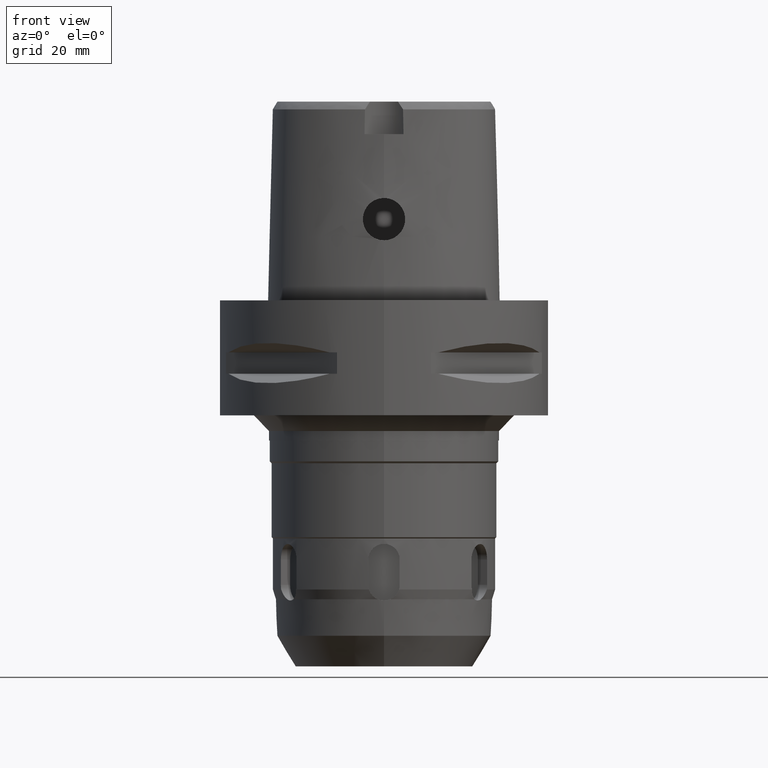
[diagram: clean part render]
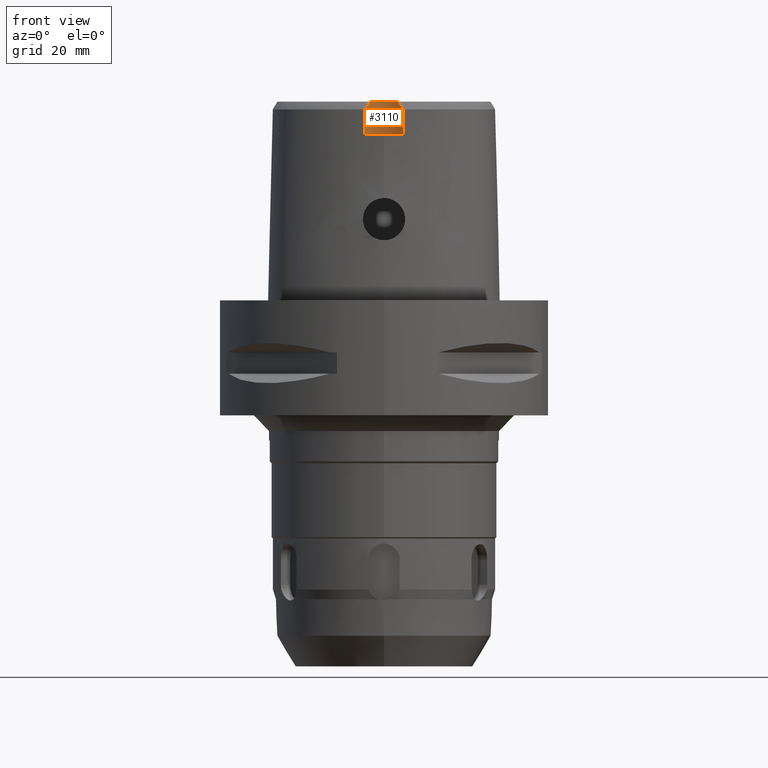
[diagram: same view with one face highlighted and labeled with its STEP entity id]
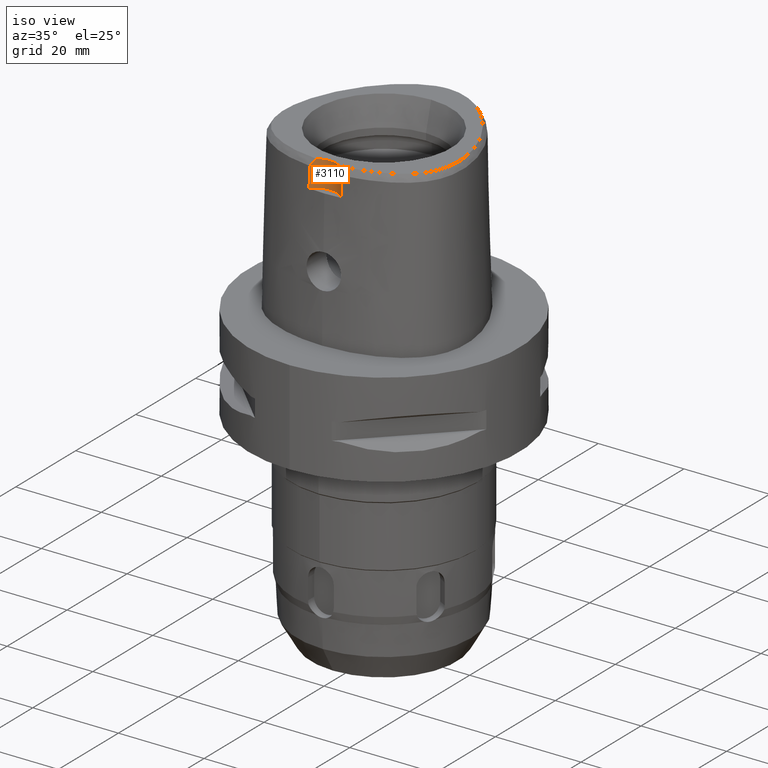
[diagram: same view with one face highlighted and labeled with its STEP entity id]
A machine part, front view. The second image highlights one B-rep face of the part: STEP entity #3110.
A second angle (iso view) of the same face is appended — the face is thin or edge-on in the first view.
In plain terms, the highlighted cylindrical surface (edge-blend (fillet) strip) has radius 5 mm, axis along (0, 0, 1).
Its self-contained STEP definition (entity closure, byte-faithful):
#17=CARTESIAN_POINT('',(0.E0,-2.3E1,3.8E1));
#18=DIRECTION('',(0.E0,0.E0,1.E0));
#19=DIRECTION('',(5.364574965210E-1,8.439273395420E-1,0.E0));
#20=AXIS2_PLACEMENT_3D('',#17,#18,#19);
#26=CARTESIAN_POINT('',(0.E0,-2.3E1,3.8E1));
#27=DIRECTION('',(0.E0,0.E0,1.E0));
#28=DIRECTION('',(0.E0,1.E0,0.E0));
#29=AXIS2_PLACEMENT_3D('',#26,#27,#28);
#138=CARTESIAN_POINT('',(3.637738219117E0,-1.956971420299E1,3.652185956444E1));
#139=CARTESIAN_POINT('',(3.538220969543E0,-1.946417847691E1,3.671701142574E1));
#140=CARTESIAN_POINT('',(3.333277453535E0,-1.926526852167E1,3.708676588112E1));
#141=CARTESIAN_POINT('',(3.013357428385E0,-1.900313484422E1,3.757841006115E1));
#142=CARTESIAN_POINT('',(2.793257776835E0,-1.885090355314E1,3.786621691237E1));
#143=CARTESIAN_POINT('',(2.682287482607E0,-1.878036330229E1,3.8E1));
#192=CARTESIAN_POINT('',(-2.682279906005E0,-1.878035848610E1,3.8E1));
#193=CARTESIAN_POINT('',(-2.797912367637E0,-1.885386203546E1,3.786059898424E1));
#194=CARTESIAN_POINT('',(-3.023156947592E0,-1.901042548575E1,3.756466629536E1));
#195=CARTESIAN_POINT('',(-3.340776899659E0,-1.927219914263E1,3.707384379575E1));
#196=CARTESIAN_POINT('',(-3.541104082211E0,-1.946723589967E1,3.671136089486E1));
#197=CARTESIAN_POINT('',(-3.637738201364E0,-1.956971413237E1,3.652186244848E1));
#253=CARTESIAN_POINT('',(-3.637738201364E0,-1.956971413237E1,3.652186244848E1));
#254=CARTESIAN_POINT('',(-3.649042726833E0,-1.958170231834E1,3.599710491520E1));
#255=CARTESIAN_POINT('',(-3.671106183707E0,-1.960533297179E1,3.494764182412E1));
#256=CARTESIAN_POINT('',(-3.704089539557E0,-1.964135162194E1,3.337369009748E1));
#257=CARTESIAN_POINT('',(-3.726005756395E0,-1.966575923510E1,3.232454432382E1));
#258=CARTESIAN_POINT('',(-3.736696126116E0,-1.967778323257E1,3.18E1));
#1887=CARTESIAN_POINT('',(3.736696120838E0,-1.967778323292E1,3.180000004973E1));
#1888=CARTESIAN_POINT('',(3.726005752326E0,-1.966575923680E1,3.232454431400E1));
#1889=CARTESIAN_POINT('',(3.704089546608E0,-1.964135163374E1,3.337368958251E1));
#1890=CARTESIAN_POINT('',(3.671106187705E0,-1.960533295284E1,3.494764256979E1));
#1891=CARTESIAN_POINT('',(3.649042743234E0,-1.958170238761E1,3.599710209057E1));
#1892=CARTESIAN_POINT('',(3.637738219117E0,-1.956971420299E1,3.652185956444E1));
#1924=CARTESIAN_POINT('',(0.E0,-2.3E1,3.18E1));
#1925=DIRECTION('',(0.E0,0.E0,-1.E0));
#1926=DIRECTION('',(-7.473444622799E-1,6.644367951127E-1,0.E0));
#1927=AXIS2_PLACEMENT_3D('',#1924,#1925,#1926);
#1932=CARTESIAN_POINT('',(0.E0,-2.3E1,3.18E1));
#1933=DIRECTION('',(0.E0,0.E0,-1.E0));
#1934=DIRECTION('',(0.E0,1.E0,0.E0));
#1935=AXIS2_PLACEMENT_3D('',#1932,#1933,#1934);
#2738=CARTESIAN_POINT('',(0.E0,-1.8E1,3.8E1));
#2739=CARTESIAN_POINT('',(-2.682279906007E0,-1.878035848610E1,3.8E1));
#2740=VERTEX_POINT('',#2738);
#2741=VERTEX_POINT('',#2739);
#2742=CARTESIAN_POINT('',(2.682287482605E0,-1.878036330229E1,3.8E1));
#2743=VERTEX_POINT('',#2742);
#2749=VERTEX_POINT('',#138);
#2750=VERTEX_POINT('',#1887);
#2751=CARTESIAN_POINT('',(0.E0,-1.8E1,3.18E1));
#2752=VERTEX_POINT('',#2751);
#2753=CARTESIAN_POINT('',(-3.736722311399E0,-1.967781602444E1,3.18E1));
#2754=VERTEX_POINT('',#2753);
#2755=VERTEX_POINT('',#253);
#3089=CARTESIAN_POINT('',(0.E0,-2.3E1,3.8E1));
#3090=DIRECTION('',(0.E0,0.E0,1.E0));
#3091=DIRECTION('',(0.E0,1.E0,0.E0));
#3092=AXIS2_PLACEMENT_3D('',#3089,#3090,#3091);
#3093=CYLINDRICAL_SURFACE('',#3092,5.E0);
#3094=ORIENTED_EDGE('',*,*,#3074,.F.);
#3095=ORIENTED_EDGE('',*,*,#3072,.F.);
#3097=ORIENTED_EDGE('',*,*,#3096,.F.);
#3099=ORIENTED_EDGE('',*,*,#3098,.F.);
#3101=ORIENTED_EDGE('',*,*,#3100,.F.);
#3103=ORIENTED_EDGE('',*,*,#3102,.F.);
#3105=ORIENTED_EDGE('',*,*,#3104,.F.);
#3107=ORIENTED_EDGE('',*,*,#3106,.F.);
#3108=EDGE_LOOP('',(#3094,#3095,#3097,#3099,#3101,#3103,#3105,#3107));
#3109=FACE_OUTER_BOUND('',#3108,.F.);
#21=CIRCLE('',#20,5.E0);
#30=CIRCLE('',#29,5.E0);
#144=B_SPLINE_CURVE_WITH_KNOTS('',3,(#138,#139,#140,#141,#142,#143),
.UNSPECIFIED.,.F.,.F.,(4,1,1,4),(0.E0,3.333333333333E-1,6.666666666667E-1,1.E0),
.UNSPECIFIED.);
#198=B_SPLINE_CURVE_WITH_KNOTS('',3,(#192,#193,#194,#195,#196,#197),
.UNSPECIFIED.,.F.,.F.,(4,1,1,4),(0.E0,3.333333333333E-1,6.666666666667E-1,1.E0),
.UNSPECIFIED.);
#259=B_SPLINE_CURVE_WITH_KNOTS('',3,(#253,#254,#255,#256,#257,#258),
.UNSPECIFIED.,.F.,.F.,(4,1,1,4),(0.E0,3.333333333333E-1,6.666666666667E-1,1.E0),
.UNSPECIFIED.);
#1893=B_SPLINE_CURVE_WITH_KNOTS('',3,(#1887,#1888,#1889,#1890,#1891,#1892),
.UNSPECIFIED.,.F.,.F.,(4,1,1,4),(0.E0,3.333333333333E-1,6.666666666667E-1,1.E0),
.UNSPECIFIED.);
#1928=CIRCLE('',#1927,5.E0);
#1936=CIRCLE('',#1935,5.E0);
#3072=EDGE_CURVE('',#2743,#2740,#21,.T.);
#3074=EDGE_CURVE('',#2740,#2741,#30,.T.);
#3096=EDGE_CURVE('',#2749,#2743,#144,.T.);
#3098=EDGE_CURVE('',#2750,#2749,#1893,.T.);
#3100=EDGE_CURVE('',#2752,#2750,#1936,.T.);
#3102=EDGE_CURVE('',#2754,#2752,#1928,.T.);
#3104=EDGE_CURVE('',#2755,#2754,#259,.T.);
#3106=EDGE_CURVE('',#2741,#2755,#198,.T.);
#3110=ADVANCED_FACE('',(#3109),#3093,.F.);